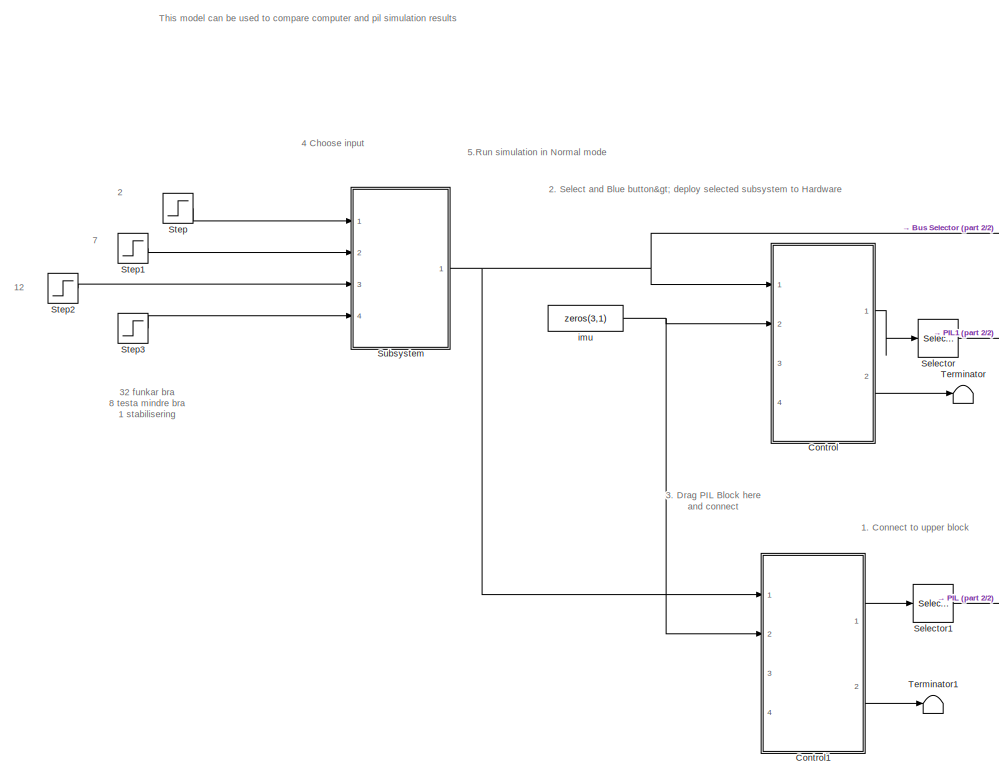
[diagram: root canvas - part 1/2, left side, full height]
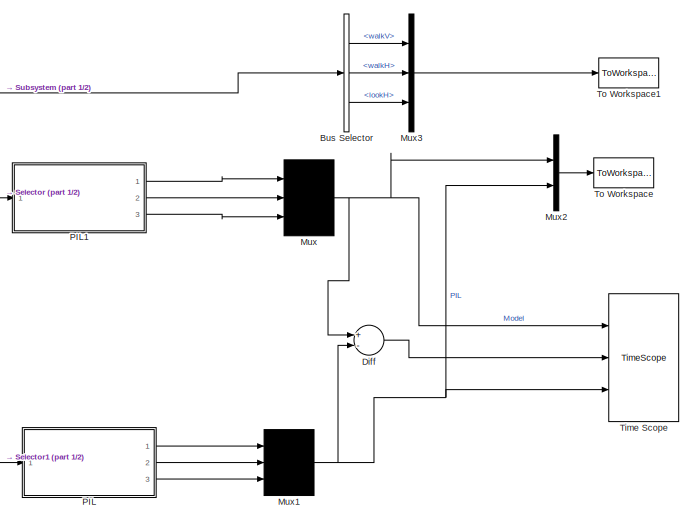
[diagram: root canvas - part 2/2, middle right region]
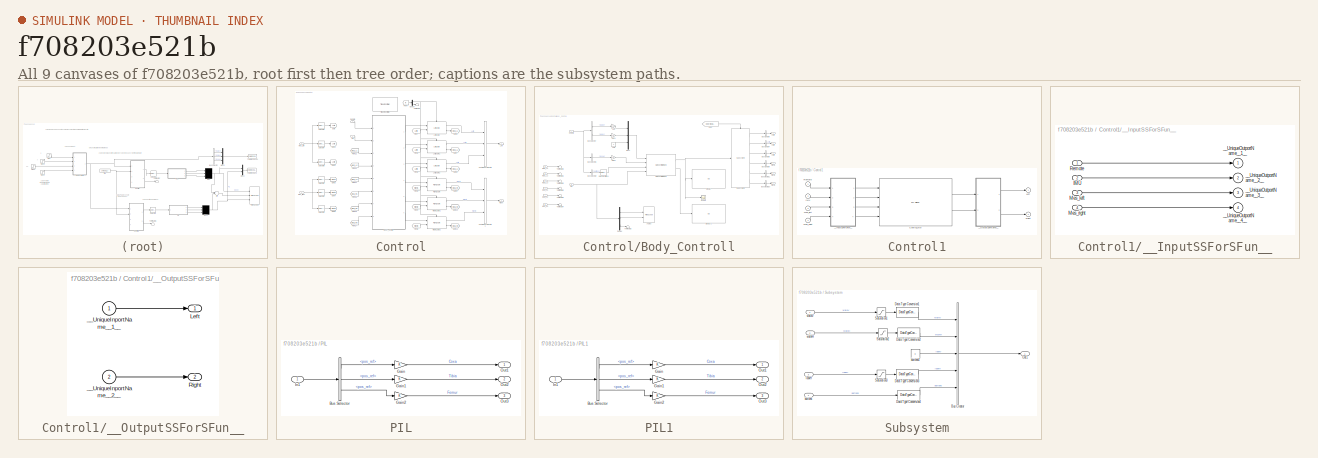
[diagram: thumbnail index - all 9 canvases of the model, root first then tree order]
MODEL slx_f708203e521b
KIND model
BLOCK [BusSelector] Bus Selector
  OutputSignals = walkV,walkH,lookH
  Ports = [1, 3]
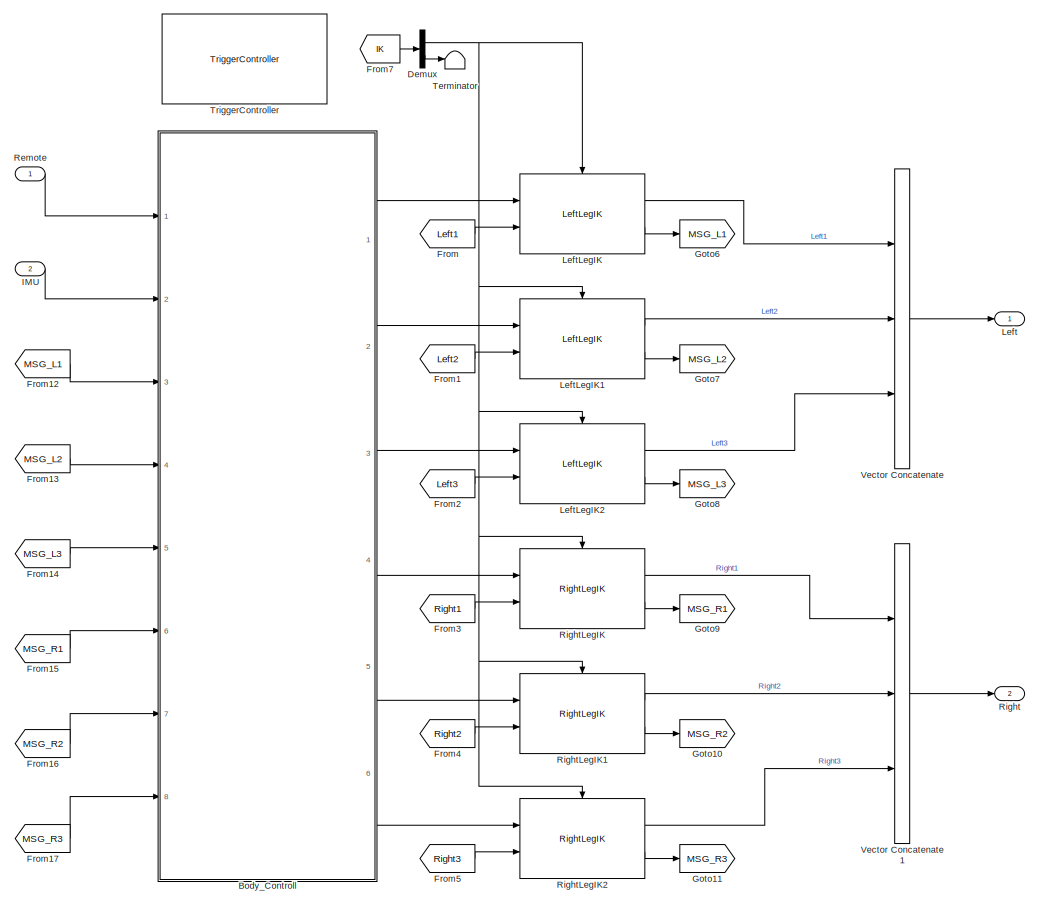
[diagram: Control - part 1/2, most of the canvas]
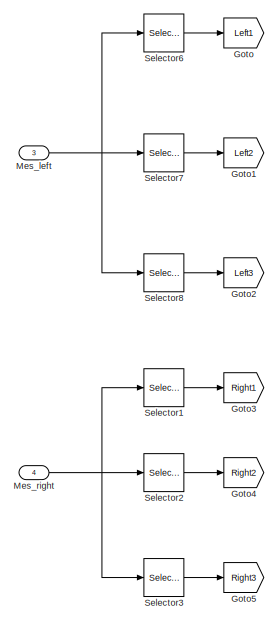
[diagram: Control - part 2/2, middle left region]
BLOCK [SubSystem] Control
  Ports = [4, 2]
  RequestExecContextInheritance = off
  TreatAsAtomicUnit = on
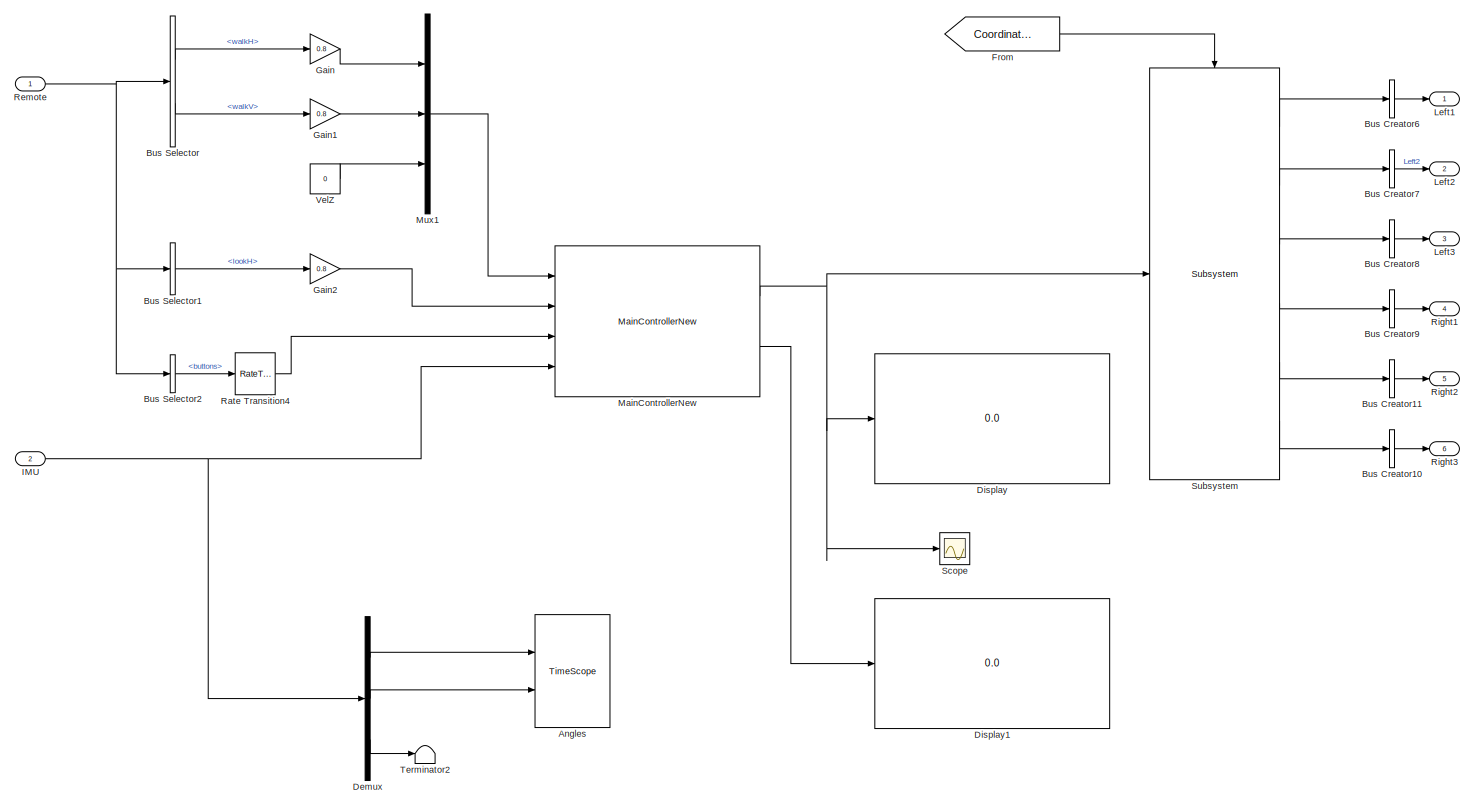
[diagram: Control/Body_Controll - part 1/2, most of the canvas]
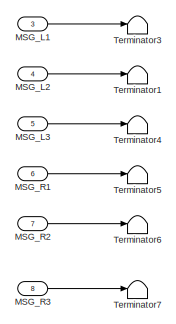
[diagram: Control/Body_Controll - part 2/2, middle left region]
BLOCK [SubSystem] Control/Body_Controll
  Ports = [8, 6]
  RequestExecContextInheritance = off
BLOCK [TimeScope] Control/Body_Controll/Angles
  DefaultConfigurationName = spbscopes.TimeScopeBlockCfg
  NumInputPorts = 2
  Ports = [2]
  ScopeSpecificationString = spbscopes.TimeScopeBlockCfg('CurrentConfiguration', extmgr.ConfigurationSet(extmgr.Configuration('Core','General UI',true,'FigureColor',[0 0 0]),extmgr.Configuration('Core','Source UI',true),extmgr.Configuration('Sources','WiredSimulink',true,'PointsPerSignal',6000,'SampleTime','0.0125','DataLoggingSaveFormat','Array','DataLoggingVariableName','Balancing'),extmgr.Configuration('Visuals','Time Doma...<+2214ch>
  UserDataPersistent = on
BLOCK [BusCreator] Control/Body_Controll/Bus Creator10
  DisplayOption = bar
  InheritFromInputs = off
  Inputs = 1
  OutDataTypeStr = Bus: Leg_data
  Ports = [1, 1]
BLOCK [BusCreator] Control/Body_Controll/Bus Creator11
  DisplayOption = bar
  InheritFromInputs = off
  Inputs = 1
  OutDataTypeStr = Bus: Leg_data
  Ports = [1, 1]
BLOCK [BusCreator] Control/Body_Controll/Bus Creator6
  DisplayOption = bar
  InheritFromInputs = off
  Inputs = 1
  OutDataTypeStr = Bus: Leg_data
  Ports = [1, 1]
BLOCK [BusCreator] Control/Body_Controll/Bus Creator7
  DisplayOption = bar
  InheritFromInputs = off
  Inputs = 1
  OutDataTypeStr = Bus: Leg_data
  Ports = [1, 1]
BLOCK [BusCreator] Control/Body_Controll/Bus Creator8
  DisplayOption = bar
  InheritFromInputs = off
  Inputs = 1
  OutDataTypeStr = Bus: Leg_data
  Ports = [1, 1]
BLOCK [BusCreator] Control/Body_Controll/Bus Creator9
  DisplayOption = bar
  InheritFromInputs = off
  Inputs = 1
  OutDataTypeStr = Bus: Leg_data
  Ports = [1, 1]
BLOCK [BusSelector] Control/Body_Controll/Bus Selector
  OutputSignals = walkH,walkV
  Ports = [1, 2]
BLOCK [BusSelector] Control/Body_Controll/Bus Selector1
  OutputSignals = lookH
  Ports = [1, 1]
BLOCK [BusSelector] Control/Body_Controll/Bus Selector2
  OutputSignals = buttons
  Ports = [1, 1]
BLOCK [Demux] Control/Body_Controll/Demux
  DisplayOption = bar
  Outputs = 3
  Ports = [1, 3]
BLOCK [Display] Control/Body_Controll/Display
  Commented = on
  Decimation = 1
  Ports = [1]
BLOCK [Display] Control/Body_Controll/Display1
  Commented = on
  Decimation = 1
  Ports = [1]
BLOCK [From] Control/Body_Controll/From
  GotoTag = CoordinateTransform
  TagVisibility = global
BLOCK [Gain] Control/Body_Controll/Gain
  Gain = 0.8
  OutDataTypeStr = double
  ParamDataTypeStr = Inherit: Inherit via internal rule
  SaturateOnIntegerOverflow = off
BLOCK [Gain] Control/Body_Controll/Gain1
  Gain = 0.8
  OutDataTypeStr = double
  ParamDataTypeStr = Inherit: Inherit via internal rule
  SaturateOnIntegerOverflow = off
BLOCK [Gain] Control/Body_Controll/Gain2
  Gain = 0.8
  OutDataTypeStr = double
  ParamDataTypeStr = Inherit: Inherit via internal rule
  SaturateOnIntegerOverflow = off
BLOCK [Inport] Control/Body_Controll/IMU
  IconDisplay = Port number
  Port = 2
BLOCK [Outport] Control/Body_Controll/Left1
  IconDisplay = Port number
  OutDataTypeStr = Bus: Leg_data
BLOCK [Outport] Control/Body_Controll/Left2
  IconDisplay = Port number
  OutDataTypeStr = Bus: Leg_data
  Port = 2
BLOCK [Outport] Control/Body_Controll/Left3
  IconDisplay = Port number
  OutDataTypeStr = Bus: Leg_data
  Port = 3
BLOCK [Inport] Control/Body_Controll/MSG_L1
  IconDisplay = Port number
  Port = 3
BLOCK [Inport] Control/Body_Controll/MSG_L2
  IconDisplay = Port number
  Port = 4
BLOCK [Inport] Control/Body_Controll/MSG_L3
  IconDisplay = Port number
  Port = 5
BLOCK [Inport] Control/Body_Controll/MSG_R1
  IconDisplay = Port number
  Port = 6
BLOCK [Inport] Control/Body_Controll/MSG_R2
  IconDisplay = Port number
  Port = 7
BLOCK [Inport] Control/Body_Controll/MSG_R3
  IconDisplay = Port number
  Port = 8
BLOCK [Reference] Control/Body_Controll/MainControllerNew  REF=MainController/MainControllerNew
  Ports = [4, 2]
  SourceBlock = MainController/MainControllerNew
  SourceType = SubSystem
BLOCK [Mux] Control/Body_Controll/Mux1
  DisplayOption = bar
  Inputs = 3
  Ports = [3, 1]
BLOCK [RateTransition] Control/Body_Controll/Rate Transition4
  Deterministic = off
  OutPortSampleTime = 0.0125
BLOCK [Inport] Control/Body_Controll/Remote
  IconDisplay = Port number
  OutDataTypeStr = Bus: Command
BLOCK [Outport] Control/Body_Controll/Right1
  IconDisplay = Port number
  OutDataTypeStr = Bus: Leg_data
  Port = 4
BLOCK [Outport] Control/Body_Controll/Right2
  IconDisplay = Port number
  OutDataTypeStr = Bus: Leg_data
  Port = 5
BLOCK [Outport] Control/Body_Controll/Right3
  IconDisplay = Port number
  OutDataTypeStr = Bus: Leg_data
  Port = 6
BLOCK [Scope] Control/Body_Controll/Scope
  Commented = on
  Floating = off
  LimitDataPoints = off
  NumInputPorts = 1
  Ports = [1]
  SaveName = ScopeData5
  ShowLegends = off
  YMax = 400
  YMin = -300
BLOCK [Reference] Control/Body_Controll/Subsystem  REF=Coord_BodyToLeg/Subsystem
  Ports = [1, 6, 0, 1]
  SourceBlock = Coord_BodyToLeg/Subsystem
  SourceType = SubSystem
BLOCK [Terminator] Control/Body_Controll/Terminator1
BLOCK [Terminator] Control/Body_Controll/Terminator2
BLOCK [Terminator] Control/Body_Controll/Terminator3
BLOCK [Terminator] Control/Body_Controll/Terminator4
BLOCK [Terminator] Control/Body_Controll/Terminator5
BLOCK [Terminator] Control/Body_Controll/Terminator6
BLOCK [Terminator] Control/Body_Controll/Terminator7
BLOCK [Constant] Control/Body_Controll/VelZ
  OutDataTypeStr = double
  SampleTime = 0.0125
  Value = 0
BLOCK [Demux] Control/Demux
  DisplayOption = bar
  Outputs = 2
  Ports = [1, 2]
BLOCK [From] Control/From
  GotoTag = Left1
BLOCK [From] Control/From1
  GotoTag = Left2
BLOCK [From] Control/From12
  GotoTag = MSG_L1
BLOCK [From] Control/From13
  GotoTag = MSG_L2
BLOCK [From] Control/From14
  GotoTag = MSG_L3
BLOCK [From] Control/From15
  GotoTag = MSG_R1
BLOCK [From] Control/From16
  GotoTag = MSG_R2
BLOCK [From] Control/From17
  GotoTag = MSG_R3
BLOCK [From] Control/From2
  GotoTag = Left3
BLOCK [From] Control/From3
  GotoTag = Right1
BLOCK [From] Control/From4
  GotoTag = Right2
BLOCK [From] Control/From5
  GotoTag = Right3
BLOCK [From] Control/From7
  GotoTag = IK
  TagVisibility = global
BLOCK [Goto] Control/Goto
  GotoTag = Left1
BLOCK [Goto] Control/Goto1
  GotoTag = Left2
BLOCK [Goto] Control/Goto10
  GotoTag = MSG_R2
BLOCK [Goto] Control/Goto11
  GotoTag = MSG_R3
BLOCK [Goto] Control/Goto2
  GotoTag = Left3
BLOCK [Goto] Control/Goto3
  GotoTag = Right1
BLOCK [Goto] Control/Goto4
  GotoTag = Right2
BLOCK [Goto] Control/Goto5
  GotoTag = Right3
BLOCK [Goto] Control/Goto6
  GotoTag = MSG_L1
BLOCK [Goto] Control/Goto7
  GotoTag = MSG_L2
BLOCK [Goto] Control/Goto8
  GotoTag = MSG_L3
BLOCK [Goto] Control/Goto9
  GotoTag = MSG_R1
BLOCK [Inport] Control/IMU
  IconDisplay = Port number
  Port = 2
BLOCK [Outport] Control/Left
  IconDisplay = Port number
  OutDataTypeStr = Bus: Leg_ref
BLOCK [Reference] Control/LeftLegIK  REF=LegIK/LeftLegIK
  ID1 = 1
  ID2 = 3
  ID3 = 5
  Ports = [2, 2, 0, 1]
  SourceBlock = LegIK/LeftLegIK
BLOCK [Reference] Control/LeftLegIK1  REF=LegIK/LeftLegIK
  ID1 = 13
  ID2 = 15
  ID3 = 17
  Ports = [2, 2, 0, 1]
  SourceBlock = LegIK/LeftLegIK
BLOCK [Reference] Control/LeftLegIK2  REF=LegIK/LeftLegIK
  ID1 = 7
  ID2 = 9
  ID3 = 11
  Ports = [2, 2, 0, 1]
  SourceBlock = LegIK/LeftLegIK
BLOCK [Inport] Control/Mes_left
  IconDisplay = Port number
  OutDataTypeStr = Bus: Leg_mes
  Port = 3
BLOCK [Inport] Control/Mes_right
  IconDisplay = Port number
  OutDataTypeStr = Bus: Leg_mes
  Port = 4
BLOCK [Inport] Control/Remote
  IconDisplay = Port number
  OutDataTypeStr = Bus: Command
BLOCK [Outport] Control/Right
  IconDisplay = Port number
  OutDataTypeStr = Bus: Leg_ref
  Port = 2
BLOCK [Reference] Control/RightLegIK  REF=LegIK/RightLegIK
  ID1 = 2
  ID2 = 4
  ID3 = 6
  Ports = [2, 2, 0, 1]
  SourceBlock = LegIK/RightLegIK
BLOCK [Reference] Control/RightLegIK1  REF=LegIK/RightLegIK
  ID1 = 14
  ID2 = 16
  ID3 = 18
  Ports = [2, 2, 0, 1]
  SourceBlock = LegIK/RightLegIK
BLOCK [Reference] Control/RightLegIK2  REF=LegIK/RightLegIK
  ID1 = 8
  ID2 = 10
  ID3 = 12
  Ports = [2, 2, 0, 1]
  SourceBlock = LegIK/RightLegIK
BLOCK [Selector] Control/Selector1
  IndexMode = Zero-based
  Indices = 0
  InputPortWidth = 3
  Ports = [1, 1]
BLOCK [Selector] Control/Selector2
  IndexMode = Zero-based
  InputPortWidth = 3
  Ports = [1, 1]
BLOCK [Selector] Control/Selector3
  IndexMode = Zero-based
  Indices = 2
  InputPortWidth = 3
  Ports = [1, 1]
BLOCK [Selector] Control/Selector6
  IndexMode = Zero-based
  Indices = 0
  InputPortWidth = 3
  Ports = [1, 1]
BLOCK [Selector] Control/Selector7
  IndexMode = Zero-based
  InputPortWidth = 3
  Ports = [1, 1]
BLOCK [Selector] Control/Selector8
  IndexMode = Zero-based
  Indices = 2
  InputPortWidth = 3
  Ports = [1, 1]
BLOCK [Terminator] Control/Terminator
BLOCK [Reference] Control/TriggerController  REF=TriggerSystem/TriggerController
  Ports = []
  SourceBlock = TriggerSystem/TriggerController
  f = 40
BLOCK [Concatenate] Control/Vector Concatenate
  ConcatenateDimension = 2
  NumInputs = 3
  Ports = [3, 1]
BLOCK [Concatenate] Control/Vector Concatenate1
  ConcatenateDimension = 2
  NumInputs = 3
  Ports = [3, 1]
BLOCK [SubSystem] Control1
  DialogController = pil_create_dialog
  LoadFcn = try\n   if ~strcmp(rtw.pil.SILPILInterface.getPILVersion, '6.7 (R2014b)_12')\n      set_param(gcb, 'DialogController', '');\n      set_param(gcb, 'DialogControllerArgs', '');\n   end\ncatch e\n      set_param(gcb, 'DialogController', '');\n      set_param(gcb, 'DialogControllerArgs', '');\nend
  Ports = [4, 2]
  RequestExecContextInheritance = off
BLOCK [Reference] Control1/Control_sfcn  REF=pil_lib/PIL Block
  CodeDir = <userpath>\Hexapod\CodeGeneration\Control_ert_rtw
  ComponentPath = PILComparison/Control
  ConfigName = BeagleBone Black
  IsTopModelPIL = off
  MaskPortLabels = port_label('input',1,'Remote')\nport_label('input',2,'IMU')\nport_label('input',3,'Mes_left')\nport_label('input',4,'Mes_right')\nport_label('output',1,'Left')\nport_label('output',2,'Right')
  Ports = [4, 2]
  SourceBlock = pil_lib/PIL Block
BLOCK [Inport] Control1/IMU
  IconDisplay = Port number
  Port = 2
BLOCK [Outport] Control1/Left
  BusOutputAsStruct = on
  IconDisplay = Port number
  OutDataTypeStr = Bus: Leg_ref
  SampleTime = [0.012500000000000001 0]
BLOCK [Inport] Control1/Mes_left
  BusOutputAsStruct = on
  IconDisplay = Port number
  OutDataTypeStr = Bus: Leg_mes
  Port = 3
BLOCK [Inport] Control1/Mes_right
  BusOutputAsStruct = on
  IconDisplay = Port number
  OutDataTypeStr = Bus: Leg_mes
  Port = 4
BLOCK [Inport] Control1/Remote
  IconDisplay = Port number
  OutDataTypeStr = Bus: Command
BLOCK [Outport] Control1/Right
  BusOutputAsStruct = on
  IconDisplay = Port number
  OutDataTypeStr = Bus: Leg_ref
  Port = 2
  SampleTime = [0.012500000000000001 0]
BLOCK [SubSystem] Control1/__InputSSForSFun__
  PermitHierarchicalResolution = ExplicitOnly
  Ports = [4, 4]
  RequestExecContextInheritance = off
BLOCK [Inport] Control1/__InputSSForSFun__/IMU
  IconDisplay = Port number
  Port = 2
BLOCK [Inport] Control1/__InputSSForSFun__/Mes_left
  BusOutputAsStruct = on
  IconDisplay = Port number
  OutDataTypeStr = Bus: Leg_mes
  Port = 3
BLOCK [Inport] Control1/__InputSSForSFun__/Mes_right
  BusOutputAsStruct = on
  IconDisplay = Port number
  OutDataTypeStr = Bus: Leg_mes
  Port = 4
BLOCK [Inport] Control1/__InputSSForSFun__/Remote
  IconDisplay = Port number
  OutDataTypeStr = Bus: Command
BLOCK [Outport] Control1/__InputSSForSFun__/__UniqueOutportName__1__
  IconDisplay = Port number
BLOCK [Outport] Control1/__InputSSForSFun__/__UniqueOutportName__2__
  IconDisplay = Port number
  Port = 2
BLOCK [Outport] Control1/__InputSSForSFun__/__UniqueOutportName__3__
  IconDisplay = Port number
  Port = 3
BLOCK [Outport] Control1/__InputSSForSFun__/__UniqueOutportName__4__
  IconDisplay = Port number
  Port = 4
BLOCK [SubSystem] Control1/__OutputSSForSFun__
  PermitHierarchicalResolution = ExplicitOnly
  Ports = [2, 2]
  RequestExecContextInheritance = off
BLOCK [Outport] Control1/__OutputSSForSFun__/Left
  BusOutputAsStruct = on
  IconDisplay = Port number
  OutDataTypeStr = Bus: Leg_ref
  SampleTime = [0.012500000000000001 0]
BLOCK [Outport] Control1/__OutputSSForSFun__/Right
  BusOutputAsStruct = on
  IconDisplay = Port number
  OutDataTypeStr = Bus: Leg_ref
  Port = 2
  SampleTime = [0.012500000000000001 0]
BLOCK [Inport] Control1/__OutputSSForSFun__/__UniqueInportName__1__
  IconDisplay = Port number
BLOCK [Inport] Control1/__OutputSSForSFun__/__UniqueInportName__2__
  IconDisplay = Port number
  Port = 2
BLOCK [Sum] Diff
  InputSameDT = off
  Inputs = +-
  OutDataTypeStr = Inherit: Inherit via internal rule
  Ports = [2, 1]
  SaturateOnIntegerOverflow = off
BLOCK [Mux] Mux
  DisplayOption = signals
  Inputs = 3
  Ports = [3, 1]
BLOCK [Mux] Mux1
  DisplayOption = signals
  Inputs = 3
  Ports = [3, 1]
BLOCK [Mux] Mux2
  DisplayOption = bar
  Inputs = 2
  Ports = [2, 1]
BLOCK [Mux] Mux3
  DisplayOption = bar
  Inputs = 3
  Ports = [3, 1]
BLOCK [SubSystem] PIL
  Ports = [1, 3]
  RequestExecContextInheritance = off
BLOCK [BusSelector] PIL/Bus Selector
  OutputSignals = Servo1.pos_ref,Servo2.pos_ref,Servo3.pos_ref
  Ports = [1, 3]
BLOCK [Gain] PIL/Gain
  OutDataTypeStr = Inherit: Inherit via internal rule
  ParamDataTypeStr = Inherit: Inherit via internal rule
  SaturateOnIntegerOverflow = off
BLOCK [Gain] PIL/Gain1
  OutDataTypeStr = Inherit: Inherit via internal rule
  ParamDataTypeStr = Inherit: Inherit via internal rule
  SaturateOnIntegerOverflow = off
BLOCK [Gain] PIL/Gain2
  OutDataTypeStr = Inherit: Inherit via internal rule
  ParamDataTypeStr = Inherit: Inherit via internal rule
  SaturateOnIntegerOverflow = off
BLOCK [Inport] PIL/In1
  IconDisplay = Port number
BLOCK [Outport] PIL/Out1
  IconDisplay = Signal name
BLOCK [Outport] PIL/Out2
  IconDisplay = Signal name
  Port = 2
BLOCK [Outport] PIL/Out3
  IconDisplay = Signal name
  Port = 3
BLOCK [SubSystem] PIL1
  Ports = [1, 3]
  RequestExecContextInheritance = off
BLOCK [BusSelector] PIL1/Bus Selector
  OutputSignals = Servo1.pos_ref,Servo2.pos_ref,Servo3.pos_ref
  Ports = [1, 3]
BLOCK [Gain] PIL1/Gain
  OutDataTypeStr = Inherit: Inherit via internal rule
  ParamDataTypeStr = Inherit: Inherit via internal rule
  SaturateOnIntegerOverflow = off
BLOCK [Gain] PIL1/Gain1
  OutDataTypeStr = Inherit: Inherit via internal rule
  ParamDataTypeStr = Inherit: Inherit via internal rule
  SaturateOnIntegerOverflow = off
BLOCK [Gain] PIL1/Gain2
  OutDataTypeStr = Inherit: Inherit via internal rule
  ParamDataTypeStr = Inherit: Inherit via internal rule
  SaturateOnIntegerOverflow = off
BLOCK [Inport] PIL1/In1
  IconDisplay = Port number
BLOCK [Outport] PIL1/Out1
  IconDisplay = Signal name
BLOCK [Outport] PIL1/Out2
  IconDisplay = Signal name
  Port = 2
BLOCK [Outport] PIL1/Out3
  IconDisplay = Signal name
  Port = 3
BLOCK [Selector] Selector
  IndexMode = Zero-based
  IndexOptions = Starting index (dialog)
  Indices = 0
  InputPortWidth = 3
  Ports = [1, 1]
BLOCK [Selector] Selector1
  IndexMode = Zero-based
  IndexOptions = Starting index (dialog)
  Indices = 0
  InputPortWidth = 3
  Ports = [1, 1]
BLOCK [Step] Step
  After = 50
  SampleTime = 0.0125
  Time = 2
BLOCK [Step] Step1
  After = 25
  SampleTime = 0.0125
  Time = 7
BLOCK [Step] Step2
  After = 60
  SampleTime = 0.0125
  Time = 12
BLOCK [Step] Step3
  After = 0
  SampleTime = 0.0125
  Time = 10
BLOCK [SubSystem] Subsystem
  Ports = [4, 1]
  RequestExecContextInheritance = off
BLOCK [BusCreator] Subsystem/Bus Creator
  DisplayOption = bar
  Inputs = 5
  OutDataTypeStr = Bus: Command
  Ports = [5, 1]
BLOCK [DataTypeConversion] Subsystem/Data Type Conversion1
  OutDataTypeStr = int8
  RndMeth = Floor
  SaturateOnIntegerOverflow = off
BLOCK [DataTypeConversion] Subsystem/Data Type Conversion2
  OutDataTypeStr = int8
  RndMeth = Floor
  SaturateOnIntegerOverflow = off
BLOCK [DataTypeConversion] Subsystem/Data Type Conversion3
  OutDataTypeStr = int8
  RndMeth = Floor
  SaturateOnIntegerOverflow = off
BLOCK [DataTypeConversion] Subsystem/Data Type Conversion4
  OutDataTypeStr = uint8
  RndMeth = Floor
  SaturateOnIntegerOverflow = off
BLOCK [Outport] Subsystem/Out1
  IconDisplay = Port number
BLOCK [Saturate] Subsystem/Saturation1
  InputPortMap = u0
  LowerLimit = -30
  Ports = [1, 1]
  UpperLimit = 50
BLOCK [Saturate] Subsystem/Saturation2
  InputPortMap = u0
  LowerLimit = -30
  Ports = [1, 1]
  UpperLimit = 50
BLOCK [Saturate] Subsystem/Saturation3
  InputPortMap = u0
  LowerLimit = -50
  Ports = [1, 1]
  UpperLimit = 50
BLOCK [Inport] Subsystem/buttons
  IconDisplay = Signal name
  Port = 4
BLOCK [Constant] Subsystem/buttons4
  OutDataTypeStr = int8
  SampleTime = -1
  Value = 0
BLOCK [Inport] Subsystem/lookH
  IconDisplay = Signal name
  Port = 3
BLOCK [Inport] Subsystem/walkH
  IconDisplay = Signal name
  Port = 2
BLOCK [Inport] Subsystem/walkV
  IconDisplay = Signal name
BLOCK [Terminator] Terminator
BLOCK [Terminator] Terminator1
BLOCK [TimeScope] Time Scope
  DefaultConfigurationName = spbscopes.TimeScopeBlockCfg
  ExtModeUploadOption = log
  NumInputPorts = 3
  Ports = [3]
  ScopeSpecificationString = spbscopes.TimeScopeBlockCfg('CurrentConfiguration', extmgr.ConfigurationSet(extmgr.Configuration('Core','General UI',true),extmgr.Configuration('Core','Source UI',true),extmgr.Configuration('Sources','WiredSimulink',true,'DataLoggingVariableName','ScopeData3'),extmgr.Configuration('Visuals','Time Domain',true,'DisplayLayoutDimensions',[3 1],'DisplayPropertyDefaults',struct('YLabelReal','Amplitude'...<+2708ch>
  UserDataPersistent = on
BLOCK [ToWorkspace] To Workspace
  FixptAsFi = on
  MaxDataPoints = inf
  Ports = [1]
  SampleTime = -1
  Save2DSignal = 2-D array (concatenate along first dimension)
  SaveFormat = Structure With Time
  VariableName = PILout
BLOCK [ToWorkspace] To Workspace1
  FixptAsFi = on
  MaxDataPoints = inf
  Ports = [1]
  SampleTime = -1
  Save2DSignal = 3-D array (concatenate along third dimension)
  SaveFormat = Structure With Time
  VariableName = PILcontrol
BLOCK [Constant] imu
  OutDataTypeStr = double
  SampleTime = 0.0125
  Value = zeros(3,1)
ANNOTATION (root): 12
ANNOTATION (root): 2
ANNOTATION (root): 32 funkar bra 8 testa mindre bra 1 stabilisering
ANNOTATION (root): 7
ANNOTATION (root): 1. Connect to upper block
ANNOTATION (root): 2. Select and Blue button> deploy selected subsystem to Hardware
ANNOTATION (root): 3. Drag PIL Block here and connect
ANNOTATION (root): 5.Run simulation in Normal mode
ANNOTATION (root): 4 Choose input
ANNOTATION (root): This model can be used to compare computer and pil simulation results
LINE Bus Selector:1 -> Mux3:1
LINE Bus Selector:2 -> Mux3:2
LINE Bus Selector:3 -> Mux3:3
LINE Control/Body_Controll/Bus Creator10:1 -> Control/Body_Controll/Right3:1
LINE Control/Body_Controll/Bus Creator11:1 -> Control/Body_Controll/Right2:1
LINE Control/Body_Controll/Bus Creator6:1 -> Control/Body_Controll/Left1:1
LINE Control/Body_Controll/Bus Creator7:1 -> Control/Body_Controll/Left2:1
LINE Control/Body_Controll/Bus Creator8:1 -> Control/Body_Controll/Left3:1
LINE Control/Body_Controll/Bus Creator9:1 -> Control/Body_Controll/Right1:1
LINE Control/Body_Controll/Bus Selector1:1 -> Control/Body_Controll/Gain2:1
LINE Control/Body_Controll/Bus Selector2:1 -> Control/Body_Controll/Rate Transition4:1
LINE Control/Body_Controll/Bus Selector:1 -> Control/Body_Controll/Gain:1
LINE Control/Body_Controll/Bus Selector:2 -> Control/Body_Controll/Gain1:1
LINE Control/Body_Controll/Demux:1 -> Control/Body_Controll/Angles:1
LINE Control/Body_Controll/Demux:2 -> Control/Body_Controll/Angles:2
LINE Control/Body_Controll/Demux:3 -> Control/Body_Controll/Terminator2:1
LINE Control/Body_Controll/From:1 -> Control/Body_Controll/Subsystem:trigger
LINE Control/Body_Controll/Gain1:1 -> Control/Body_Controll/Mux1:2
LINE Control/Body_Controll/Gain2:1 -> Control/Body_Controll/MainControllerNew:2
LINE Control/Body_Controll/Gain:1 -> Control/Body_Controll/Mux1:1
NET Control/Body_Controll/IMU:1 -> Control/Body_Controll/Demux:1, Control/Body_Controll/MainControllerNew:4
LINE Control/Body_Controll/MSG_L1:1 -> Control/Body_Controll/Terminator3:1
LINE Control/Body_Controll/MSG_L2:1 -> Control/Body_Controll/Terminator1:1
LINE Control/Body_Controll/MSG_L3:1 -> Control/Body_Controll/Terminator4:1
LINE Control/Body_Controll/MSG_R1:1 -> Control/Body_Controll/Terminator5:1
LINE Control/Body_Controll/MSG_R2:1 -> Control/Body_Controll/Terminator6:1
LINE Control/Body_Controll/MSG_R3:1 -> Control/Body_Controll/Terminator7:1
NET Control/Body_Controll/MainControllerNew:1 -> Control/Body_Controll/Display:1, Control/Body_Controll/Scope:1, Control/Body_Controll/Subsystem:1
LINE Control/Body_Controll/MainControllerNew:2 -> Control/Body_Controll/Display1:1
LINE Control/Body_Controll/Mux1:1 -> Control/Body_Controll/MainControllerNew:1
LINE Control/Body_Controll/Rate Transition4:1 -> Control/Body_Controll/MainControllerNew:3
NET Control/Body_Controll/Remote:1 -> Control/Body_Controll/Bus Selector1:1, Control/Body_Controll/Bus Selector2:1, Control/Body_Controll/Bus Selector:1
LINE Control/Body_Controll/Subsystem:1 -> Control/Body_Controll/Bus Creator6:1
LINE Control/Body_Controll/Subsystem:2 -> Control/Body_Controll/Bus Creator7:1
LINE Control/Body_Controll/Subsystem:3 -> Control/Body_Controll/Bus Creator8:1
LINE Control/Body_Controll/Subsystem:4 -> Control/Body_Controll/Bus Creator9:1
LINE Control/Body_Controll/Subsystem:5 -> Control/Body_Controll/Bus Creator11:1
LINE Control/Body_Controll/Subsystem:6 -> Control/Body_Controll/Bus Creator10:1
LINE Control/Body_Controll/VelZ:1 -> Control/Body_Controll/Mux1:3
LINE Control/Body_Controll:1 -> Control/LeftLegIK:1
LINE Control/Body_Controll:2 -> Control/LeftLegIK1:1
LINE Control/Body_Controll:3 -> Control/LeftLegIK2:1
LINE Control/Body_Controll:4 -> Control/RightLegIK:1
LINE Control/Body_Controll:5 -> Control/RightLegIK1:1
LINE Control/Body_Controll:6 -> Control/RightLegIK2:1
NET Control/Demux:1 -> Control/LeftLegIK1:trigger, Control/LeftLegIK2:trigger, Control/LeftLegIK:trigger, Control/RightLegIK1:trigger, Control/RightLegIK2:trigger, Control/RightLegIK:trigger
LINE Control/Demux:2 -> Control/Terminator:1
LINE Control/From12:1 -> Control/Body_Controll:3
LINE Control/From13:1 -> Control/Body_Controll:4
LINE Control/From14:1 -> Control/Body_Controll:5
LINE Control/From15:1 -> Control/Body_Controll:6
LINE Control/From16:1 -> Control/Body_Controll:7
LINE Control/From17:1 -> Control/Body_Controll:8
LINE Control/From1:1 -> Control/LeftLegIK1:2
LINE Control/From2:1 -> Control/LeftLegIK2:2
LINE Control/From3:1 -> Control/RightLegIK:2
LINE Control/From4:1 -> Control/RightLegIK1:2
LINE Control/From5:1 -> Control/RightLegIK2:2
LINE Control/From7:1 -> Control/Demux:1
LINE Control/From:1 -> Control/LeftLegIK:2
LINE Control/IMU:1 -> Control/Body_Controll:2
LINE Control/LeftLegIK1:1 -> Control/Vector Concatenate:2
LINE Control/LeftLegIK1:2 -> Control/Goto7:1
LINE Control/LeftLegIK2:1 -> Control/Vector Concatenate:3
LINE Control/LeftLegIK2:2 -> Control/Goto8:1
LINE Control/LeftLegIK:1 -> Control/Vector Concatenate:1
LINE Control/LeftLegIK:2 -> Control/Goto6:1
NET Control/Mes_left:1 -> Control/Selector6:1, Control/Selector7:1, Control/Selector8:1
NET Control/Mes_right:1 -> Control/Selector1:1, Control/Selector2:1, Control/Selector3:1
LINE Control/Remote:1 -> Control/Body_Controll:1
LINE Control/RightLegIK1:1 -> Control/Vector Concatenate1:2
LINE Control/RightLegIK1:2 -> Control/Goto10:1
LINE Control/RightLegIK2:1 -> Control/Vector Concatenate1:3
LINE Control/RightLegIK2:2 -> Control/Goto11:1
LINE Control/RightLegIK:1 -> Control/Vector Concatenate1:1
LINE Control/RightLegIK:2 -> Control/Goto9:1
LINE Control/Selector1:1 -> Control/Goto3:1
LINE Control/Selector2:1 -> Control/Goto4:1
LINE Control/Selector3:1 -> Control/Goto5:1
LINE Control/Selector6:1 -> Control/Goto:1
LINE Control/Selector7:1 -> Control/Goto1:1
LINE Control/Selector8:1 -> Control/Goto2:1
LINE Control/Vector Concatenate1:1 -> Control/Right:1
LINE Control/Vector Concatenate:1 -> Control/Left:1
LINE Control1/Control_sfcn:1 -> Control1/__OutputSSForSFun__:1
LINE Control1/Control_sfcn:2 -> Control1/__OutputSSForSFun__:2
LINE Control1/IMU:1 -> Control1/__InputSSForSFun__:2
LINE Control1/Mes_left:1 -> Control1/__InputSSForSFun__:3
LINE Control1/Mes_right:1 -> Control1/__InputSSForSFun__:4
LINE Control1/Remote:1 -> Control1/__InputSSForSFun__:1
LINE Control1/__InputSSForSFun__/IMU:1 -> Control1/__InputSSForSFun__/__UniqueOutportName__2__:1
LINE Control1/__InputSSForSFun__/Mes_left:1 -> Control1/__InputSSForSFun__/__UniqueOutportName__3__:1
LINE Control1/__InputSSForSFun__/Mes_right:1 -> Control1/__InputSSForSFun__/__UniqueOutportName__4__:1
LINE Control1/__InputSSForSFun__/Remote:1 -> Control1/__InputSSForSFun__/__UniqueOutportName__1__:1
LINE Control1/__InputSSForSFun__:1 -> Control1/Control_sfcn:1
LINE Control1/__InputSSForSFun__:2 -> Control1/Control_sfcn:2
LINE Control1/__InputSSForSFun__:3 -> Control1/Control_sfcn:3
LINE Control1/__InputSSForSFun__:4 -> Control1/Control_sfcn:4
LINE Control1/__OutputSSForSFun__/__UniqueInportName__1__:1 -> Control1/__OutputSSForSFun__/Left:1
LINE Control1/__OutputSSForSFun__/__UniqueInportName__2__:1 -> Control1/__OutputSSForSFun__/Right:1
LINE Control1/__OutputSSForSFun__:1 -> Control1/Left:1
LINE Control1/__OutputSSForSFun__:2 -> Control1/Right:1
LINE Control1:1 -> Selector1:1
LINE Control1:2 -> Terminator1:1
LINE Control:1 -> Selector:1
LINE Control:2 -> Terminator:1
LINE Diff:1 -> Time Scope:2
NET Mux1:1 -> Diff:2, Mux2:2, Time Scope:3
LINE Mux2:1 -> To Workspace:1
LINE Mux3:1 -> To Workspace1:1
NET Mux:1 -> Diff:1, Mux2:1, Time Scope:1
LINE PIL/Bus Selector:1 -> PIL/Gain:1
LINE PIL/Bus Selector:2 -> PIL/Gain1:1
LINE PIL/Bus Selector:3 -> PIL/Gain2:1
LINE PIL/Gain1:1 -> PIL/Out2:1
LINE PIL/Gain2:1 -> PIL/Out3:1
LINE PIL/Gain:1 -> PIL/Out1:1
LINE PIL/In1:1 -> PIL/Bus Selector:1
LINE PIL1/Bus Selector:1 -> PIL1/Gain:1
LINE PIL1/Bus Selector:2 -> PIL1/Gain1:1
LINE PIL1/Bus Selector:3 -> PIL1/Gain2:1
LINE PIL1/Gain1:1 -> PIL1/Out2:1
LINE PIL1/Gain2:1 -> PIL1/Out3:1
LINE PIL1/Gain:1 -> PIL1/Out1:1
LINE PIL1/In1:1 -> PIL1/Bus Selector:1
LINE PIL1:1 -> Mux:1
LINE PIL1:2 -> Mux:2
LINE PIL1:3 -> Mux:3
LINE PIL:1 -> Mux1:1
LINE PIL:2 -> Mux1:2
LINE PIL:3 -> Mux1:3
LINE Selector1:1 -> PIL:1
LINE Selector:1 -> PIL1:1
LINE Step1:1 -> Subsystem:2
LINE Step2:1 -> Subsystem:3
LINE Step3:1 -> Subsystem:4
LINE Step:1 -> Subsystem:1
LINE Subsystem/Bus Creator:1 -> Subsystem/Out1:1
LINE Subsystem/Data Type Conversion1:1 -> Subsystem/Bus Creator:1
LINE Subsystem/Data Type Conversion2:1 -> Subsystem/Bus Creator:2
LINE Subsystem/Data Type Conversion3:1 -> Subsystem/Bus Creator:4
LINE Subsystem/Data Type Conversion4:1 -> Subsystem/Bus Creator:5
LINE Subsystem/Saturation1:1 -> Subsystem/Data Type Conversion1:1
LINE Subsystem/Saturation2:1 -> Subsystem/Data Type Conversion2:1
LINE Subsystem/Saturation3:1 -> Subsystem/Data Type Conversion3:1
LINE Subsystem/buttons4:1 -> Subsystem/Bus Creator:3
LINE Subsystem/buttons:1 -> Subsystem/Data Type Conversion4:1
LINE Subsystem/lookH:1 -> Subsystem/Saturation3:1
LINE Subsystem/walkH:1 -> Subsystem/Saturation2:1
LINE Subsystem/walkV:1 -> Subsystem/Saturation1:1
NET Subsystem:1 -> Bus Selector:1, Control1:1, Control:1
NET imu:1 -> Control1:2, Control:2
note: NET lines group one-source signal fan-out (src -> all destinations, sorted); 1:1 wires keep LINE
